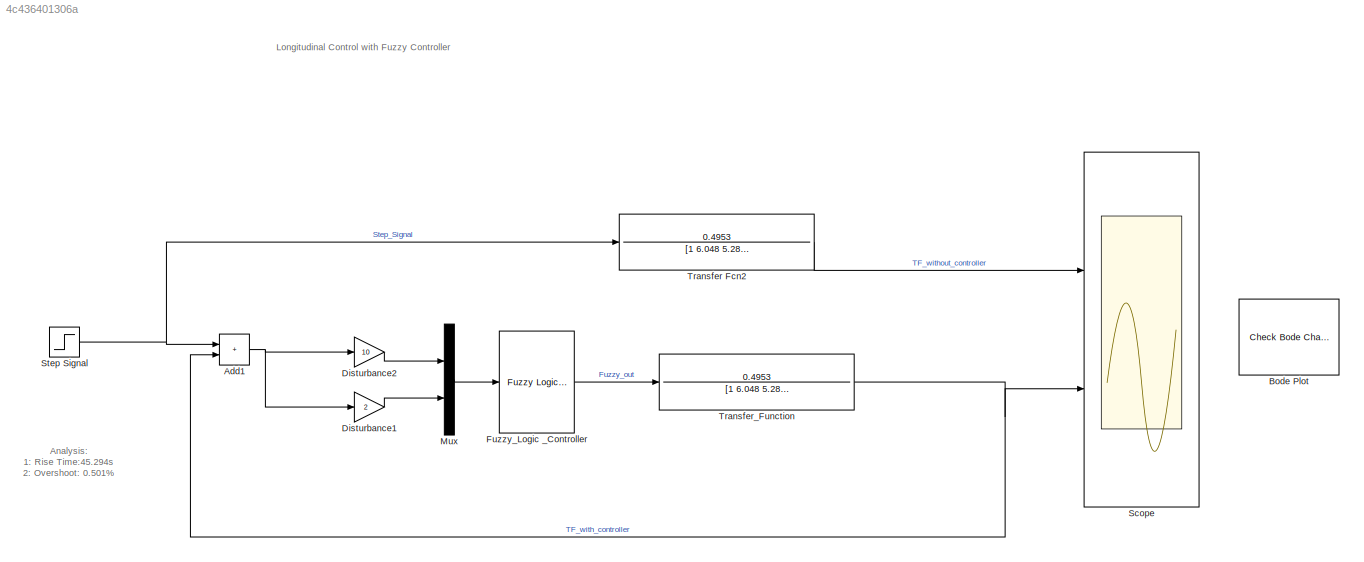
MODEL slx_4c436401306a
KIND model
CONFIG AbsTol = auto
CONFIG EnableMultiTasking = off
CONFIG FixedStep = auto
CONFIG MaxStep = auto
CONFIG MinStep = auto
CONFIG RelTol = 1e-3
CONFIG SampleTimeConstraint = Unconstrained
CONFIG SolverName = VariableStepAuto
CONFIG StartTime = 0.0
CONFIG StopTime = 500
BLOCK [Sum] Add1
  IconShape = rectangular
  Ports = [2, 1]
BLOCK [Reference] Bode Plot  REF=slctrlblks/Model Verification/Check Bode 
Characteristics
  InstantiateOnLoad = on
  Ports = []
  SourceBlock = slctrlblks/Model Verification/Check Bode \nCharacteristics
  SourceProductBaseCode = SD
  SourceType = Checks_Bode
BLOCK [Gain] Disturbance1
  Gain = 2
BLOCK [Gain] Disturbance2
  Gain = 10
BLOCK [Reference] Fuzzy_Logic _Controller  REF=fuzblock/Fuzzy Logic   (lib defined in mdl_858b3b3e7478)
Controller
  Ports = [1, 1]
  SourceBlock = fuzblock/Fuzzy Logic \nController
  SourceProductBaseCode = FL
  SourceType = Fuzzy Inference System
BLOCK [Mux] Mux
  DisplayOption = bar
  Inputs = 2
  Ports = [2, 1]
BLOCK [Scope] Scope
  Floating = off
  NumInputPorts = 2
  Ports = [2]
  ScopeSpecificationString = Simulink.scopes.TimeScopeBlockCfg('CurrentConfiguration', extmgr.ConfigurationSet(extmgr.Configuration('Core','General UI',true),extmgr.Configuration('Core','Source UI',true),extmgr.Configuration('Sources','WiredSimulink',true),extmgr.Configuration('Visuals','Time Domain',true,'SerializedDisplays',{struct('MinYLimReal','-0.26014','MaxYLimReal','2.34123','YLabelReal','','MinYLimMag','0.00000','MaxY...<+2690ch>
BLOCK [Step] Step Signal
  SampleTime = 0
BLOCK [TransferFcn] Transfer Fcn2
  Denominator = [1 6.048 5.286 0.238]
  Numerator = 0.4953
BLOCK [TransferFcn] Transfer_Function
  Denominator = [1 6.048 5.286 0.238]
  Numerator = 0.4953
ANNOTATION (root): Analysis: 1: Rise Time:45.294s 2: Overshoot: 0.501%
ANNOTATION (root): Longitudinal Control with Fuzzy Controller
NET Add1:1 -> Disturbance1:1, Disturbance2:1
LINE Disturbance1:1 -> Mux:2
LINE Disturbance2:1 -> Mux:1
LINE Fuzzy_Logic _Controller:1 -> Transfer_Function:1
LINE Mux:1 -> Fuzzy_Logic _Controller:1
NET Step Signal:1 -> Add1:1, Transfer Fcn2:1
LINE Transfer Fcn2:1 -> Scope:1
NET Transfer_Function:1 -> Add1:2, Scope:2
note: NET lines group one-source signal fan-out (src -> all destinations, sorted); 1:1 wires keep LINE
